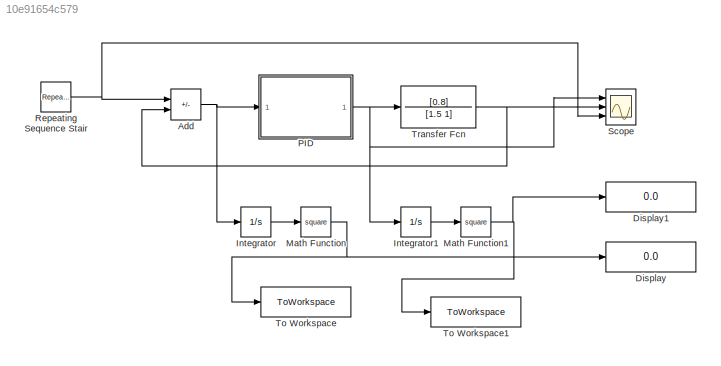
MODEL slx_10e91654c579
KIND model
CONFIG AbsTol = auto
CONFIG EnableMultiTasking = off
CONFIG FixedStep = auto
CONFIG MaxStep = auto
CONFIG MinStep = auto
CONFIG RelTol = 1e-3
CONFIG SampleTimeConstraint = Unconstrained
CONFIG SolverName = VariableStepAuto
CONFIG StartTime = 0.0
CONFIG StopTime = 5
BLOCK [Sum] Add
  IconShape = rectangular
  Inputs = +-
  Ports = [2, 1]
BLOCK [Display] Display
  Decimation = 1
  Ports = [1]
BLOCK [Display] Display1
  Decimation = 1
  Ports = [1]
BLOCK [Integrator] Integrator
  Ports = [1, 1]
BLOCK [Integrator] Integrator1
  Ports = [1, 1]
BLOCK [Math] Math Function
  Operator = square
  Ports = [1, 1]
BLOCK [Math] Math Function1
  Operator = square
  Ports = [1, 1]
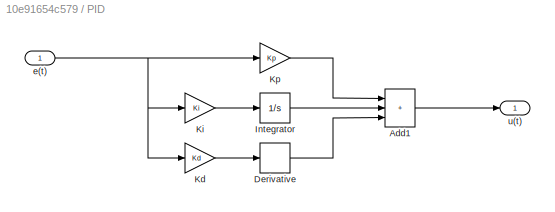
BLOCK [SubSystem] PID
  Ports = [1, 1]
  RequestExecContextInheritance = off
BLOCK [Sum] PID/Add1
  IconShape = rectangular
  Inputs = +++
  Ports = [3, 1]
BLOCK [Derivative] PID/Derivative
BLOCK [Integrator] PID/Integrator
  Ports = [1, 1]
BLOCK [Gain] PID/Kd
  Gain = Kd
BLOCK [Gain] PID/Ki
  Gain = Ki
BLOCK [Gain] PID/Kp
  Gain = Kp
BLOCK [Inport] PID/e(t)
BLOCK [Outport] PID/u(t)
BLOCK [Reference] Repeating Sequence Stair  REF=simulink/Sources/Repeating
Sequence
Stair
  Ports = [0, 1]
  SourceBlock = simulink/Sources/Repeating\nSequence\nStair
  SourceProductBaseCode = SL
  SourceType = Repeating Sequence Stair
BLOCK [Scope] Scope
  Floating = off
  NumInputPorts = 3
  Ports = [3]
  ScopeSpecificationString = Simulink.scopes.TimeScopeBlockCfg('CurrentConfiguration', extmgr.ConfigurationSet(extmgr.Configuration('Core','General UI',true),extmgr.Configuration('Core','Source UI',true),extmgr.Configuration('Sources','WiredSimulink',true),extmgr.Configuration('Visuals','Time Domain',true,'SerializedDisplays',{struct('MinYLimReal','-134.18786','MaxYLimReal','154.74073','YLabelReal','','MinYLimMag',' 0.00000',...<+1998ch>
BLOCK [ToWorkspace] To Workspace
  FixptAsFi = on
  MaxDataPoints = inf
  Ports = [1]
  SampleTime = -1
  SaveFormat = Structure With Time
  VariableName = e
BLOCK [ToWorkspace] To Workspace1
  FixptAsFi = on
  MaxDataPoints = inf
  Ports = [1]
  SampleTime = -1
  SaveFormat = Structure With Time
  VariableName = u
BLOCK [TransferFcn] Transfer Fcn
  Denominator = [1.5 1]
  Numerator = [0.8]
NET Add:1 -> Integrator:1, PID:1
LINE Integrator1:1 -> Math Function1:1
LINE Integrator:1 -> Math Function:1
NET Math Function1:1 -> Display1:1, To Workspace1:1
NET Math Function:1 -> Display:1, To Workspace:1
LINE PID/Add1:1 -> PID/u(t):1
LINE PID/Derivative:1 -> PID/Add1:3
LINE PID/Integrator:1 -> PID/Add1:2
LINE PID/Kd:1 -> PID/Derivative:1
LINE PID/Ki:1 -> PID/Integrator:1
LINE PID/Kp:1 -> PID/Add1:1
NET PID/e(t):1 -> PID/Kd:1, PID/Ki:1, PID/Kp:1
NET PID:1 -> Integrator1:1, Scope:1, Transfer Fcn:1
NET Repeating Sequence Stair:1 -> Add:1, Scope:3
NET Transfer Fcn:1 -> Add:2, Scope:2
note: NET lines group one-source signal fan-out (src -> all destinations, sorted); 1:1 wires keep LINE
